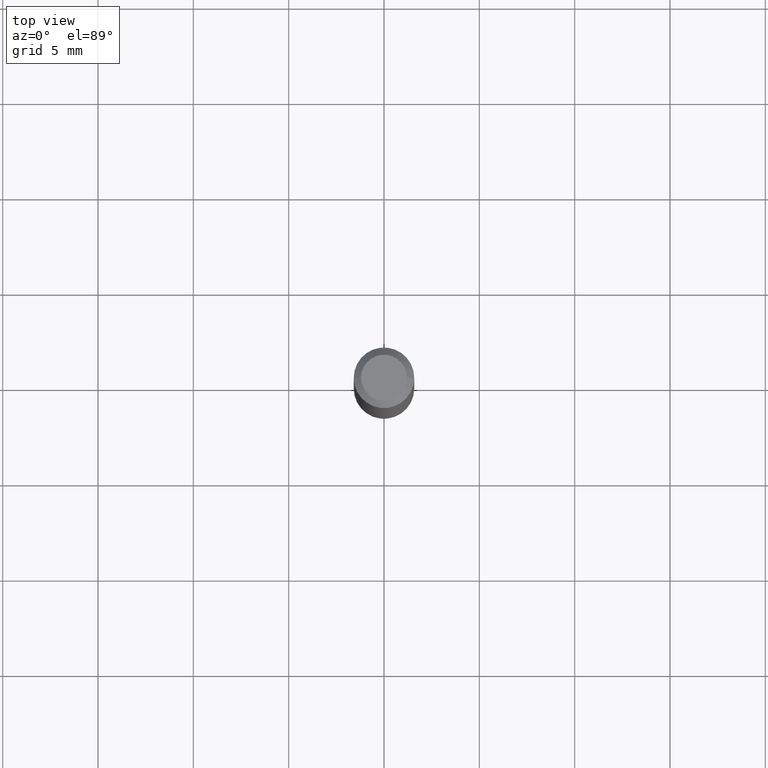
[diagram: clean part render]
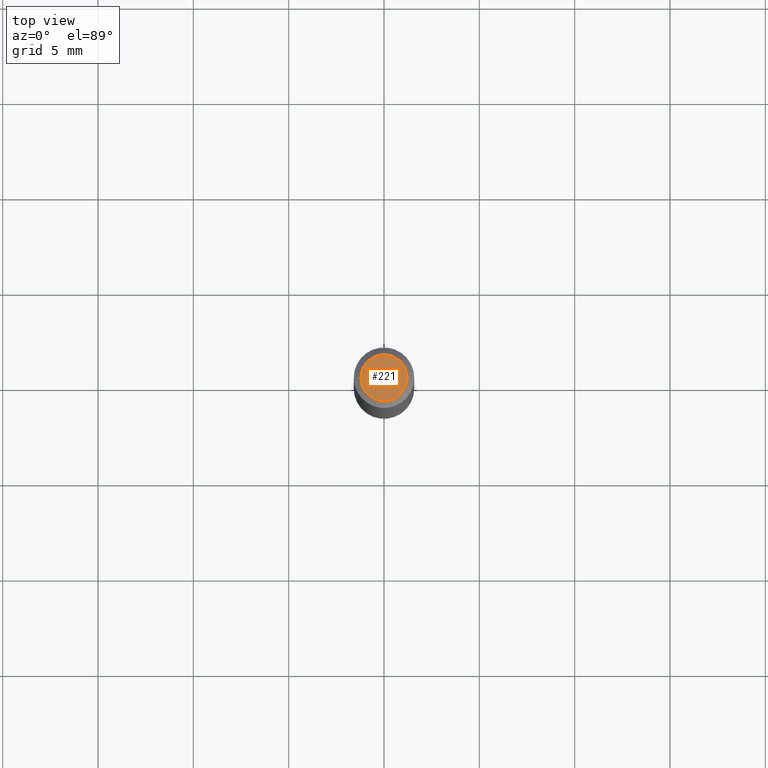
[diagram: same view with one face highlighted and labeled with its STEP entity id]
A machine part, top view. The second image highlights one B-rep face of the part: STEP entity #221.
In plain terms, the highlighted planar face has unit normal (0, -0, -1).
Its self-contained STEP definition (entity closure, byte-faithful):
#7 = ORIENTED_EDGE ( 'NONE', *, *, #394, .T. ) ;
#13 = DIRECTION ( 'NONE',  ( -2.445468806185136597E-29, 3.491481338843145583E-15, 1.000000000000000000 ) ) ;
#24 = EDGE_CURVE ( 'NONE', #169, #430, #331, .T. ) ;
#78 = ORIENTED_EDGE ( 'NONE', *, *, #24, .T. ) ;
#86 = FACE_OUTER_BOUND ( 'NONE', #387, .T. ) ;
#146 = AXIS2_PLACEMENT_3D ( 'NONE', #512, #161, #234 ) ;
#161 = DIRECTION ( 'NONE',  ( -2.445468806185136597E-29, 3.491481338843145583E-15, 1.000000000000000000 ) ) ;
#169 = VERTEX_POINT ( 'NONE', #263 ) ;
#178 = CARTESIAN_POINT ( 'NONE',  ( -6.680649051745406845E-45, 9.538196290434862081E-31, 2.731847993664263218E-16 ) ) ;
#181 = AXIS2_PLACEMENT_3D ( 'NONE', #294, #436, #497 ) ;
#221 = ADVANCED_FACE ( 'NONE', ( #86 ), #237, .F. ) ;
#234 = DIRECTION ( 'NONE',  ( 1.000000000000000000, -6.982962677686266711E-15, 4.852736867747365086E-29 ) ) ;
#237 = PLANE ( 'NONE',  #181 ) ;
#263 = CARTESIAN_POINT ( 'NONE',  ( 0.04750000000000000749, -4.035134999187568762E-16, 2.731847993664288856E-16 ) ) ;
#293 = DIRECTION ( 'NONE',  ( 1.000000000000000000, -6.982962677686266711E-15, 4.852736867747365086E-29 ) ) ;
#294 = CARTESIAN_POINT ( 'NONE',  ( 3.316907271900976589E-16, 0.04750000000000000749, -2.925296391183627249E-17 ) ) ;
#301 = AXIS2_PLACEMENT_3D ( 'NONE', #178, #13, #293 ) ;
#331 = CIRCLE ( 'NONE', #301, 0.04750000000000000749 ) ;
#377 = CIRCLE ( 'NONE', #146, 0.04750000000000000749 ) ;
#387 = EDGE_LOOP ( 'NONE', ( #7, #78 ) ) ;
#394 = EDGE_CURVE ( 'NONE', #430, #169, #377, .T. ) ;
#401 = CARTESIAN_POINT ( 'NONE',  ( -0.04750000000000000749, 3.578768372314221353E-16, 2.731847993664239060E-16 ) ) ;
#430 = VERTEX_POINT ( 'NONE', #401 ) ;
#436 = DIRECTION ( 'NONE',  ( 2.438088387897960049E-29, -3.491481338843145188E-15, -1.000000000000000000 ) ) ;
#497 = DIRECTION ( 'NONE',  ( -1.000000000000000000, 6.982962677686265922E-15, -4.876176775795935793E-29 ) ) ;
#512 = CARTESIAN_POINT ( 'NONE',  ( -6.680649051745406845E-45, 9.538196290434862081E-31, 2.731847993664263218E-16 ) ) ;